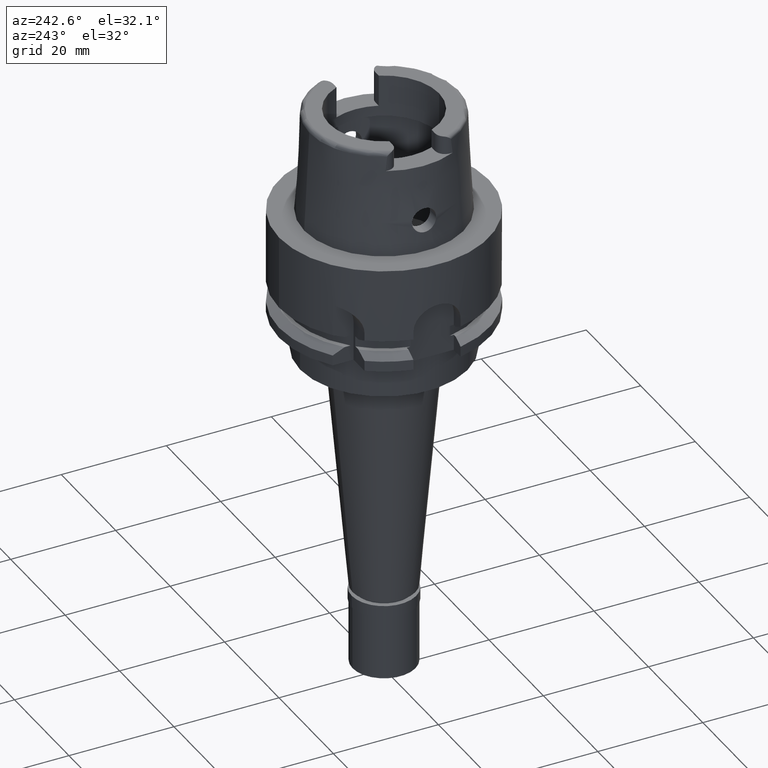
[diagram: clean part render]
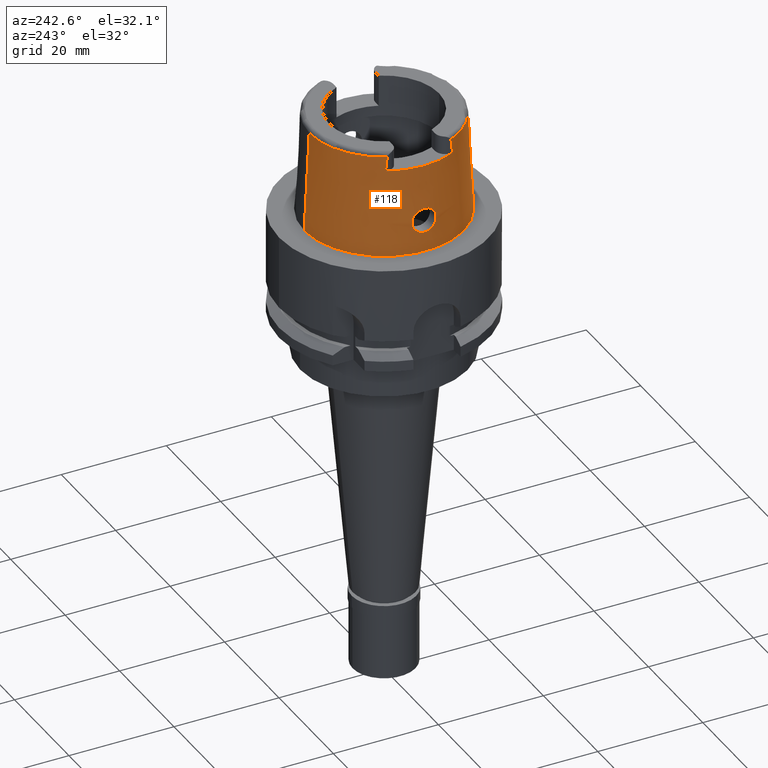
[diagram: same view with one face highlighted and labeled with its STEP entity id]
A machine part, auxiliary view. The second image highlights one B-rep face of the part: STEP entity #118.
In plain terms, the highlighted conical surface has half-angle 2.862 deg.
Its self-contained STEP definition (entity closure, byte-faithful):
#9 = CARTESIAN_POINT ( 'NONE',  ( -15.01500049747999910, 0.0000000000000000000, 3.700000000000000178 ) ) ;
#25 = DIRECTION ( 'NONE',  ( 0.0000000000000000000, 1.000000000000000000, 0.0000000000000000000 ) ) ;
#55 = CARTESIAN_POINT ( 'NONE',  ( -14.78499286951999991, 0.0000000000000000000, 8.300000000000000711 ) ) ;
#81 = VECTOR ( 'NONE', #2991, 1000.000000000000227 ) ;
#82 = DIRECTION ( 'NONE',  ( 0.0000000000000000000, 0.0000000000000000000, 1.000000000000000000 ) ) ;
#114 = CARTESIAN_POINT ( 'NONE',  ( -14.76441147274332799, -0.9572403061777664535, 8.091408035184947778 ) ) ;
#118 = ADVANCED_FACE ( 'NONE', ( #2225, #143 ), #2140, .T. ) ;
#143 = FACE_BOUND ( 'NONE', #2505, .T. ) ;
#172 = CARTESIAN_POINT ( 'NONE',  ( -12.88000127221999946, -6.383224527686000904, 16.50000000000000000 ) ) ;
#194 = EDGE_CURVE ( 'NONE', #1002, #345, #2515, .T. ) ;
#221 = CARTESIAN_POINT ( 'NONE',  ( -14.75798468595803392, 1.101483638902211126, 8.019444701686399668 ) ) ;
#224 = CARTESIAN_POINT ( 'NONE',  ( -14.72736712917567914, -1.656229200701761384, 7.595968746671929672 ) ) ;
#237 = B_SPLINE_CURVE_WITH_KNOTS ( 'NONE', 3,
 ( #1330, #391, #928, #1038, #1011, #3436 ),
 .UNSPECIFIED., .F., .F.,
 ( 4, 1, 1, 4 ),
 ( 0.0000000000000000000, 0.3333333333333000081, 0.6666666666667000474, 1.000000000000000000 ),
 .UNSPECIFIED. ) ;
#251 = CARTESIAN_POINT ( 'NONE',  ( -14.99031913303845620, -0.7459125405174404921, 3.823717286724636732 ) ) ;
#259 = CARTESIAN_POINT ( 'NONE',  ( -14.75096242492803000, 1.242845185921684026, 7.935317517616028660 ) ) ;
#286 = CARTESIAN_POINT ( 'NONE',  ( -14.77772481905088142, 2.177118166781322639, 5.256393087459484192 ) ) ;
#309 = CARTESIAN_POINT ( 'NONE',  ( -14.97820423217376451, 0.9073666423868284037, 3.886530356709605449 ) ) ;
#320 = VERTEX_POINT ( 'NONE', #951 ) ;
#335 = CARTESIAN_POINT ( 'NONE',  ( -14.80542781502363425, 2.073754343762719721, 5.002387683141980013 ) ) ;
#337 = CARTESIAN_POINT ( 'NONE',  ( -12.87999970122000093, 6.348941909170999764, 16.80451821834000015 ) ) ;
#345 = VERTEX_POINT ( 'NONE', #3923 ) ;
#353 = CARTESIAN_POINT ( 'NONE',  ( -14.70318027103663461, -2.128130188390578326, 6.872422232957131172 ) ) ;
#363 = CARTESIAN_POINT ( 'NONE',  ( -14.83824380306900892, 1.926702177450745568, 4.743841779083959764 ) ) ;
#378 = CARTESIAN_POINT ( 'NONE',  ( -14.72899193256802519, -1.629160482403873011, 7.623525830584751972 ) ) ;
#391 = CARTESIAN_POINT ( 'NONE',  ( -12.88000032454999833, -6.104114245160999985, 18.93559192338000230 ) ) ;
#406 = CARTESIAN_POINT ( 'NONE',  ( -14.89505467549890483, -1.612006839663267188, 4.359413708062565895 ) ) ;
#438 = CARTESIAN_POINT ( 'NONE',  ( -14.76641976770378761, -0.9082698951188935554, 8.113091863379718660 ) ) ;
#479 = DIRECTION ( 'NONE',  ( 0.0000000000000000000, 0.04993926899656212642, -0.9987522562738413434 ) ) ;
#528 = CIRCLE ( 'NONE', #1205, 14.23797715756000315 ) ;
#545 = EDGE_CURVE ( 'NONE', #2797, #4599, #528, .T. ) ;
#548 = CARTESIAN_POINT ( 'NONE',  ( -14.74282001829025823, -1.394059460196131361, 7.829666982800206121 ) ) ;
#604 = CARTESIAN_POINT ( 'NONE',  ( -14.78499286951999991, 0.0000000000000000000, 8.300000000000000711 ) ) ;
#634 = CARTESIAN_POINT ( 'NONE',  ( -14.75372079489156896, 1.188848292836996778, 7.969025146378802660 ) ) ;
#635 = CARTESIAN_POINT ( 'NONE',  ( -14.91331535136466613, -1.490093580144727037, 4.247437423036790172 ) ) ;
#658 = CARTESIAN_POINT ( 'NONE',  ( -14.85071538779482836, -1.866358439879953535, 4.653827804214494712 ) ) ;
#664 = AXIS2_PLACEMENT_3D ( 'NONE', #3393, #82, #25 ) ;
#666 = CARTESIAN_POINT ( 'NONE',  ( -14.70379839260923127, 2.103484666307165352, 6.930506655077567579 ) ) ;
#689 = CARTESIAN_POINT ( 'NONE',  ( -14.89132695335609213, 1.635289803509312634, 4.382612332948715661 ) ) ;
#717 = CARTESIAN_POINT ( 'NONE',  ( -14.97170962315641418, 0.9839336404257343904, 3.920604583632624429 ) ) ;
#720 = CARTESIAN_POINT ( 'NONE',  ( 0.0000000000000000000, 14.23797715755999782, 19.23995141520000018 ) ) ;
#728 = EDGE_CURVE ( 'NONE', #4802, #320, #3974, .T. ) ;
#737 = CARTESIAN_POINT ( 'NONE',  ( -14.83223569383994089, 1.955407866939525618, 4.788736271597448635 ) ) ;
#746 = ORIENTED_EDGE ( 'NONE', *, *, #1838, .T. ) ;
#751 = CARTESIAN_POINT ( 'NONE',  ( -14.99376921623996139, -0.6913047192966169652, 3.806020399528506015 ) ) ;
#762 = CARTESIAN_POINT ( 'NONE',  ( -14.70353388266187800, 2.113402193978093369, 6.907524197238846142 ) ) ;
#781 = DIRECTION ( 'NONE',  ( -0.001485959642573941343, -0.9999988959613608230, 0.0000000000000000000 ) ) ;
#783 = CARTESIAN_POINT ( 'NONE',  ( -14.89650626200009675, -1.602757769058327009, 4.350366407061430962 ) ) ;
#813 = CARTESIAN_POINT ( 'NONE',  ( -14.72275815638547591, -1.733514078388834756, 7.512656617165602846 ) ) ;
#841 = CARTESIAN_POINT ( 'NONE',  ( -14.73565061139160193, -1.519588631788606259, 7.726924015301761983 ) ) ;
#844 = VERTEX_POINT ( 'NONE', #3168 ) ;
#886 = ORIENTED_EDGE ( 'NONE', *, *, #3391, .T. ) ;
#895 = CARTESIAN_POINT ( 'NONE',  ( -14.76724071975687735, -0.8875147710998998463, 8.121872614736695084 ) ) ;
#918 = CARTESIAN_POINT ( 'NONE',  ( -14.76537005225469734, -0.9342686644043132205, 8.101810928870181172 ) ) ;
#928 = CARTESIAN_POINT ( 'NONE',  ( -12.88000001816999962, -6.175000825088000411, 18.32682660295999710 ) ) ;
#944 = CARTESIAN_POINT ( 'NONE',  ( -14.76714178673073619, -0.8900312961537683032, 8.120815848275912074 ) ) ;
#951 = CARTESIAN_POINT ( 'NONE',  ( 0.0000000000000000000, -15.20000663301000010, 1.136868377215999875E-13 ) ) ;
#1002 = VERTEX_POINT ( 'NONE', #2426 ) ;
#1011 = CARTESIAN_POINT ( 'NONE',  ( -12.88000127221999946, -6.348934803475999367, 16.80451756411999753 ) ) ;
#1033 = CARTESIAN_POINT ( 'NONE',  ( -14.76996875462087822, 0.8153131126489481240, 8.150807542174435483 ) ) ;
#1037 = CARTESIAN_POINT ( 'NONE',  ( -14.70255782048995918, -2.173666806618363090, 6.753498891217579292 ) ) ;
#1038 = CARTESIAN_POINT ( 'NONE',  ( -12.87999944956999876, -6.279959759357001126, 17.41350767068000138 ) ) ;
#1060 = CARTESIAN_POINT ( 'NONE',  ( -14.72913002065076959, -2.296037565513289191, 5.860490404701300449 ) ) ;
#1068 = CARTESIAN_POINT ( 'NONE',  ( -14.78757055974573298, 2.142021398495719264, 5.162236985965933833 ) ) ;
#1087 = CARTESIAN_POINT ( 'NONE',  ( -14.78455781423351922, 2.152996645433073564, 5.190483380136346803 ) ) ;
#1113 = CARTESIAN_POINT ( 'NONE',  ( -14.70336999611929407, 2.119902258835190345, 6.892235067160490836 ) ) ;
#1127 = ORIENTED_EDGE ( 'NONE', *, *, #2070, .T. ) ;
#1137 = CARTESIAN_POINT ( 'NONE',  ( -14.70278144902189865, 2.228568228630843695, 6.588125996260537853 ) ) ;
#1154 = CARTESIAN_POINT ( 'NONE',  ( -14.96058310804648883, -1.105953026164114394, 3.977769763799099412 ) ) ;
#1165 = CARTESIAN_POINT ( 'NONE',  ( -14.71466703997189640, 2.295561562844149694, 6.147429467160218763 ) ) ;
#1180 = CARTESIAN_POINT ( 'NONE',  ( -14.76156109208694112, -2.230833519105742901, 5.420076337100908859 ) ) ;
#1205 = AXIS2_PLACEMENT_3D ( 'NONE', #3975, #2403, #781 ) ;
#1210 = CARTESIAN_POINT ( 'NONE',  ( -14.70429888574225075, -2.078345584604967655, 6.992720687324460727 ) ) ;
#1293 = CARTESIAN_POINT ( 'NONE',  ( -14.76098091405685686, -1.036428731965509886, 8.053591711931822772 ) ) ;
#1330 = CARTESIAN_POINT ( 'NONE',  ( -12.88000032454999833, -6.068407001332999151, 19.23995948117000054 ) ) ;
#1353 = CARTESIAN_POINT ( 'NONE',  ( 0.0000000000000000000, 1.342457523729000028E-14, 9.619975707600000092 ) ) ;
#1414 = CARTESIAN_POINT ( 'NONE',  ( 0.0000000000000000000, 1.342457523729000028E-14, 16.50000000000000000 ) ) ;
#1425 = LINE ( 'NONE', #2592, #81 ) ;
#1460 = CARTESIAN_POINT ( 'NONE',  ( -14.90267920420879122, -1.562682283907213643, 4.312139517956526724 ) ) ;
#1467 = CARTESIAN_POINT ( 'NONE',  ( -14.79084587195183609, 2.129915875521236401, 5.131943730456795194 ) ) ;
#1472 = ORIENTED_EDGE ( 'NONE', *, *, #728, .T. ) ;
#1491 = CARTESIAN_POINT ( 'NONE',  ( -14.70744101244932445, 2.007287030514413484, 7.125068726371917904 ) ) ;
#1511 = CARTESIAN_POINT ( 'NONE',  ( -14.77220524205862695, 2.195288866550027862, 5.312806224022777357 ) ) ;
#1537 = CARTESIAN_POINT ( 'NONE',  ( -14.72949227126842864, 1.621146174019518549, 7.631562806400149057 ) ) ;
#1551 = CARTESIAN_POINT ( 'NONE',  ( -14.72817402922538932, -1.642776830519052433, 7.609763217481845921 ) ) ;
#1564 = CARTESIAN_POINT ( 'NONE',  ( -14.79811124128090860, 2.102656717867160907, 5.065715538066591250 ) ) ;
#1577 = EDGE_CURVE ( 'NONE', #4599, #2421, #237, .T. ) ;
#1580 = CARTESIAN_POINT ( 'NONE',  ( -14.72875720506789499, -1.633066344920302004, 7.619597551970940685 ) ) ;
#1609 = CARTESIAN_POINT ( 'NONE',  ( -14.98158019702842658, -0.8653440936945480111, 3.868982284650622550 ) ) ;
#1639 = CARTESIAN_POINT ( 'NONE',  ( -14.98380599519971668, -0.8363241484800991721, 3.857418438758408286 ) ) ;
#1697 = DIRECTION ( 'NONE',  ( -0.9046226299953515904, 0.4262134410131772633, 0.0000000000000000000 ) ) ;
#1720 = CARTESIAN_POINT ( 'NONE',  ( -14.74812628819013405, -1.296562758621182310, 7.899722723740755903 ) ) ;
#1752 = CARTESIAN_POINT ( 'NONE',  ( -14.78499286952000702, 0.1390354978604516900, 8.300000000000006040 ) ) ;
#1775 = CARTESIAN_POINT ( 'NONE',  ( -14.78353488111432412, 0.2839930478239083844, 8.287367913121357788 ) ) ;
#1838 = EDGE_CURVE ( 'NONE', #844, #4584, #5128, .T. ) ;
#1852 = CARTESIAN_POINT ( 'NONE',  ( -14.76875281507161120, 0.8481542723568192832, 8.137945965581907970 ) ) ;
#1854 = CARTESIAN_POINT ( 'NONE',  ( -14.74374174657230618, -2.273415293045992769, 5.643187280869076616 ) ) ;
#1885 = CARTESIAN_POINT ( 'NONE',  ( -14.75001028276310855, 1.261074002359995783, 7.923489124152228946 ) ) ;
#1907 = CARTESIAN_POINT ( 'NONE',  ( -14.74236787879676314, 1.402809769193638756, 7.824231870730272043 ) ) ;
#1930 = CARTESIAN_POINT ( 'NONE',  ( -14.92957925315805312, 1.378407572883883159, 4.152591006528039586 ) ) ;
#1946 = CARTESIAN_POINT ( 'NONE',  ( -15.00013860061197413, -0.5818447508915121080, 3.773511398033372544 ) ) ;
#1961 = CARTESIAN_POINT ( 'NONE',  ( -14.73757446182050046, 2.287923782966633013, 5.720915889113309838 ) ) ;
#1962 = CARTESIAN_POINT ( 'NONE',  ( -12.87999878070000115, 6.104119113946000041, 18.93561179783000270 ) ) ;
#1978 = CARTESIAN_POINT ( 'NONE',  ( -14.70697078644171363, -2.017182219916576091, 7.115111466430709797 ) ) ;
#2005 = CARTESIAN_POINT ( 'NONE',  ( -14.98243480828629792, -0.8543411826268566545, 3.864538698179908138 ) ) ;
#2030 = CARTESIAN_POINT ( 'NONE',  ( -14.73841293989468504, -2.283624721826588821, 5.716626380543555541 ) ) ;
#2070 = EDGE_CURVE ( 'NONE', #3936, #844, #3152, .T. ) ;
#2140 = CONICAL_SURFACE ( 'NONE', #4188, 14.71899189528999941, 0.04996004983832824653 ) ;
#2169 = CARTESIAN_POINT ( 'NONE',  ( -14.74882684557910650, -1.283437586465706604, 7.908610915735230229 ) ) ;
#2225 = FACE_OUTER_BOUND ( 'NONE', #3766, .T. ) ;
#2251 = CARTESIAN_POINT ( 'NONE',  ( -14.75237102686916302, 1.215633990068952119, 7.952699081744732723 ) ) ;
#2252 = CARTESIAN_POINT ( 'NONE',  ( -14.72578653300597651, -1.682641358629840767, 7.568294752592581887 ) ) ;
#2265 = CARTESIAN_POINT ( 'NONE',  ( 0.0000000000000000000, -14.23797715755999782, 19.23995141520000018 ) ) ;
#2273 = CARTESIAN_POINT ( 'NONE',  ( -14.98582960169290423, -0.8092652075246454801, 3.846922244017092485 ) ) ;
#2281 = CARTESIAN_POINT ( 'NONE',  ( -14.70935564922701388, 2.282304249896330184, 6.294147851866966903 ) ) ;
#2310 = CARTESIAN_POINT ( 'NONE',  ( -14.95160054489559798, 1.187838962825059852, 4.029017895836985552 ) ) ;
#2335 = CARTESIAN_POINT ( 'NONE',  ( -14.78959779431061428, 2.134561694359275563, 5.143408549966172139 ) ) ;
#2356 = CARTESIAN_POINT ( 'NONE',  ( -14.82876764658780111, 1.971506031635298140, 4.815273453331142761 ) ) ;
#2369 = CARTESIAN_POINT ( 'NONE',  ( -14.93882305603708893, -1.296106168133424719, 4.098488599298399038 ) ) ;
#2385 = B_SPLINE_CURVE_WITH_KNOTS ( 'NONE', 3,
 ( #3859, #5280, #5232, #3660, #1946, #751, #251, #2273, #1639, #2005, #1609, #3882, #1154, #2369, #2654, #3633, #635, #3573, #1460, #3079, #783, #406, #3174, #3268, #4295, #658, #4707, #3226, #3903, #2765, #4317, #4414, #2673, #2793, #1180, #1854, #2030, #2430, #1060, #5137, #3483, #5257, #4848, #2404, #4877, #4734, #1037, #4823, #4003, #4441, #353, #1210, #1978, #2826, #4472, #4032, #813, #2252, #224, #1551, #3608, #1580, #3197, #378, #4062, #2566, #2517, #841, #2961, #3719, #548, #4205, #4970, #4555, #1720, #4498, #2169, #4088, #4608, #1293, #2938, #114, #918, #438, #4145, #944, #895, #2459, #5028, #55 ),
 .UNSPECIFIED., .F., .F.,
 ( 4, 2, 2, 1, 1, 2, 2, 2, 2, 2, 1, 2, 2, 2, 2, 2, 1, 2, 2, 2, 2, 2, 2, 2, 2, 1, 1, 2, 2, 2, 2, 1, 1, 1, 1, 1, 2, 3, 2, 2, 2, 1, 1, 2, 2, 2, 2, 1, 1, 2, 2, 4 ),
 ( 0.0000000000000000000, 0.04999999999999563127, 0.07499999999999340528, 0.08749999999999230615, 0.09374999999999178435, 0.09687499999999155120, 0.09999999999999130418, 0.1499999999999876155, 0.1749999999999858058, 0.1874999999999849010, 0.1937499999999844624, 0.1968749999999843125, 0.1999999999999841627, 0.2249999999999831024, 0.2499999999999820144, 0.2749999999999809819, 0.2874999999999804934, 0.2937499999999803046, 0.2999999999999800604, 0.3499999999999769407, 0.3749999999999755196, 0.3874999999999747535, 0.3999999999999740430, 0.4499999999999719780, 0.4749999999999709455, 0.4874999999999703459, 0.4937499999999701017, 0.4968749999999699796, 0.4999999999999699130, 0.5499999999999697353, 0.5749999999999697575, 0.5874999999999697131, 0.5937499999999696909, 0.5968749999999697353, 0.5984374999999697575, 0.5992187499999697131, 0.5996093749999696909, 0.5999999999999695577, 0.6499999999999652722, 0.6749999999999630740, 0.6874999999999618083, 0.6937499999999610090, 0.6968749999999608313, 0.6984374999999609646, 0.6999999999999609868, 0.7499999999999710232, 0.7749999999999755973, 0.7874999999999782174, 0.7937499999999796385, 0.7968749999999799050, 0.7999999999999803935, 1.000000000000000000 ),
 .UNSPECIFIED. ) ;
#2386 = CARTESIAN_POINT ( 'NONE',  ( -14.71323797775355935, 2.292919060047866608, 6.184068183107273242 ) ) ;
#2403 = DIRECTION ( 'NONE',  ( 0.0000000000000000000, 0.0000000000000000000, -1.000000000000000000 ) ) ;
#2404 = CARTESIAN_POINT ( 'NONE',  ( -14.70427162694252665, -2.242695029754205205, 6.515719412669562338 ) ) ;
#2421 = VERTEX_POINT ( 'NONE', #172 ) ;
#2426 = CARTESIAN_POINT ( 'NONE',  ( -14.78499286951999991, 0.0000000000000000000, 8.300000000000000711 ) ) ;
#2430 = CARTESIAN_POINT ( 'NONE',  ( -14.73133619261914085, -2.293601249434481293, 5.824774636031375685 ) ) ;
#2453 = EDGE_CURVE ( 'NONE', #345, #1002, #2385, .T. ) ;
#2459 = CARTESIAN_POINT ( 'NONE',  ( -14.77913649021670217, -0.5822786145744532904, 8.248751372616515809 ) ) ;
#2505 = EDGE_LOOP ( 'NONE', ( #4139, #4041 ) ) ;
#2515 = B_SPLINE_CURVE_WITH_KNOTS ( 'NONE', 3,
 ( #604, #1752, #1775, #3802, #5059, #2999, #2653, #1033, #1852, #4294, #3480, #3880, #5134, #3047, #221, #4706, #634, #2251, #259, #1885, #4810, #4427, #1907, #4015, #3088, #4762, #4742, #3489, #1537, #4403, #3109, #5192, #1491, #3160, #5215, #666, #762, #1113, #3937, #4785, #1137, #2752, #2281, #2386, #1165, #5172, #3909, #3514, #1961, #5243, #2777, #1511, #286, #1087, #1068, #2335, #1467, #1564, #335, #3986, #3538, #2356, #737, #3185, #363, #5144, #4323, #2701, #2728, #3591, #4834, #2680, #4347, #689, #3130, #1930, #2310, #4378, #3560, #717, #3963, #309, #2861, #4103, #2806, #3397, #9 ),
 .UNSPECIFIED., .F., .F.,
 ( 4, 2, 2, 1, 1, 1, 2, 2, 2, 2, 1, 2, 2, 2, 1, 1, 2, 2, 2, 2, 1, 1, 2, 2, 2, 2, 2, 2, 2, 2, 1, 1, 2, 2, 2, 2, 1, 2, 2, 2, 1, 1, 2, 2, 2, 2, 1, 1, 2, 2, 4 ),
 ( 0.0000000000000000000, 0.06250000000000018041, 0.09375000000000030531, 0.1093750000000002776, 0.1171875000000001665, 0.1210937500000001527, 0.1230468750000002498, 0.1250000000000003331, 0.1562500000000029698, 0.1718750000000041356, 0.1796875000000045242, 0.1835937500000049127, 0.1875000000000053291, 0.2187500000000066891, 0.2343750000000074940, 0.2421875000000079381, 0.2460937500000080769, 0.2500000000000081601, 0.3125000000000112133, 0.3437500000000125455, 0.3593750000000132117, 0.3671875000000133782, 0.3710937500000134892, 0.3750000000000136557, 0.4375000000000117684, 0.4687500000000109912, 0.4843750000000104361, 0.5000000000000098810, 0.5625000000000074385, 0.5937500000000061062, 0.6093750000000055511, 0.6171875000000052180, 0.6210937500000052180, 0.6250000000000052180, 0.6562500000000058842, 0.6718750000000062172, 0.6796875000000064393, 0.6835937500000064393, 0.6875000000000064393, 0.7187500000000072164, 0.7343750000000076605, 0.7421875000000078826, 0.7460937500000078826, 0.7500000000000079936, 0.8125000000000069944, 0.8437500000000065503, 0.8593750000000062172, 0.8671875000000059952, 0.8710937500000058842, 0.8750000000000057732, 1.000000000000000000 ),
 .UNSPECIFIED. ) ;
#2517 = CARTESIAN_POINT ( 'NONE',  ( -14.73066130800939710, -1.603112216077483332, 7.650968164626947399 ) ) ;
#2562 = ORIENTED_EDGE ( 'NONE', *, *, #2693, .F. ) ;
#2564 = VECTOR ( 'NONE', #479, 1000.000000000000227 ) ;
#2566 = CARTESIAN_POINT ( 'NONE',  ( -14.72899613700521648, -1.629090535434188913, 7.623596020221194536 ) ) ;
#2592 = CARTESIAN_POINT ( 'NONE',  ( 0.0000000000000000000, -14.23797715755999782, 19.23995141520000018 ) ) ;
#2653 = CARTESIAN_POINT ( 'NONE',  ( -14.77228103310800833, 0.7495801440113635250, 8.175067098923893383 ) ) ;
#2654 = CARTESIAN_POINT ( 'NONE',  ( -14.93085586676480681, -1.360648129355556124, 4.143812047617515759 ) ) ;
#2673 = CARTESIAN_POINT ( 'NONE',  ( -14.79474784198701443, -2.115218726027876972, 5.096521521415890099 ) ) ;
#2680 = CARTESIAN_POINT ( 'NONE',  ( -14.88821528619128109, 1.654213378922227529, 4.401980118851030355 ) ) ;
#2693 = EDGE_CURVE ( 'NONE', #2797, #320, #1425, .T. ) ;
#2701 = CARTESIAN_POINT ( 'NONE',  ( -14.85790392042185282, 1.827798276681755985, 4.601830537047110425 ) ) ;
#2728 = CARTESIAN_POINT ( 'NONE',  ( -14.87086893152769917, 1.755918973052473575, 4.514005499028332480 ) ) ;
#2752 = CARTESIAN_POINT ( 'NONE',  ( -14.70730724104726939, 2.271642389110080984, 6.367753980649175638 ) ) ;
#2765 = CARTESIAN_POINT ( 'NONE',  ( -14.80665976522458749, -2.067957827389555359, 4.991962560048519570 ) ) ;
#2777 = CARTESIAN_POINT ( 'NONE',  ( -14.76161578943605690, 2.228419625315017250, 5.425317525173910305 ) ) ;
#2793 = CARTESIAN_POINT ( 'NONE',  ( -14.77588455640572818, -2.186453264426666987, 5.267515313803816213 ) ) ;
#2797 = VERTEX_POINT ( 'NONE', #2265 ) ;
#2806 = CARTESIAN_POINT ( 'NONE',  ( -15.00354986334506968, 0.5879163292119270467, 3.754523065482984645 ) ) ;
#2826 = CARTESIAN_POINT ( 'NONE',  ( -14.71340726777920871, -1.895749040540536612, 7.304515234873797169 ) ) ;
#2861 = CARTESIAN_POINT ( 'NONE',  ( -14.97944136304384877, 0.8921711069395016347, 3.880071021763059846 ) ) ;
#2919 = CARTESIAN_POINT ( 'NONE',  ( -12.88000000001000167, 6.383230300259000067, 16.50000000000000000 ) ) ;
#2938 = CARTESIAN_POINT ( 'NONE',  ( -14.76241588250440095, -1.004055092137353000, 8.069555427038123341 ) ) ;
#2961 = CARTESIAN_POINT ( 'NONE',  ( -14.73772897033166274, -1.484199900205459333, 7.757934661239480612 ) ) ;
#2976 = CARTESIAN_POINT ( 'NONE',  ( 0.0000000000000000000, 15.20000663301000010, 0.0000000000000000000 ) ) ;
#2991 = DIRECTION ( 'NONE',  ( 0.0000000000000000000, -0.04993926899656212642, -0.9987522562738413434 ) ) ;
#2999 = CARTESIAN_POINT ( 'NONE',  ( -14.77405795647742259, 0.6932314809045615478, 8.193390270923773144 ) ) ;
#3047 = CARTESIAN_POINT ( 'NONE',  ( -14.76259930579802138, 1.001254086433846169, 8.071999684882614545 ) ) ;
#3079 = CARTESIAN_POINT ( 'NONE',  ( -14.89898882335736907, -1.586744815822795918, 4.334958154673666186 ) ) ;
#3088 = CARTESIAN_POINT ( 'NONE',  ( -14.73486243619742808, 1.533082884958270942, 7.715269665524280285 ) ) ;
#3109 = CARTESIAN_POINT ( 'NONE',  ( -14.71564233033311453, 1.847824292393624557, 7.377757898496558830 ) ) ;
#3130 = CARTESIAN_POINT ( 'NONE',  ( -14.91234702442757687, 1.506148355404636652, 4.253256595478355884 ) ) ;
#3152 = B_SPLINE_CURVE_WITH_KNOTS ( 'NONE', 3,
 ( #4404, #337, #4379, #3964, #1962, #5244 ),
 .UNSPECIFIED., .F., .F.,
 ( 4, 1, 1, 4 ),
 ( 0.0000000000000000000, 0.3333333333333000081, 0.6666666666667000474, 1.000000000000000000 ),
 .UNSPECIFIED. ) ;
#3160 = CARTESIAN_POINT ( 'NONE',  ( -14.70541160571837658, 2.056189904919353939, 7.031178107986499448 ) ) ;
#3168 = CARTESIAN_POINT ( 'NONE',  ( -12.87999878070000115, 6.068418759664999662, 19.23992112227000106 ) ) ;
#3174 = CARTESIAN_POINT ( 'NONE',  ( -14.88547475113375818, -1.672470684331020196, 4.419314868621631476 ) ) ;
#3185 = CARTESIAN_POINT ( 'NONE',  ( -14.83582446310852276, 1.938319664538157960, 4.761843453099295687 ) ) ;
#3197 = CARTESIAN_POINT ( 'NONE',  ( -14.72887445292795228, -1.631115092965218283, 7.621562663224173306 ) ) ;
#3226 = CARTESIAN_POINT ( 'NONE',  ( -14.82515755202381058, -1.987914764360934283, 4.840709338436450793 ) ) ;
#3268 = CARTESIAN_POINT ( 'NONE',  ( -14.87689631369253718, -1.723586966969236967, 4.475214230854184017 ) ) ;
#3391 = EDGE_CURVE ( 'NONE', #4584, #4802, #4381, .T. ) ;
#3393 = CARTESIAN_POINT ( 'NONE',  ( 0.0000000000000000000, 1.342457523729000028E-14, 0.0000000000000000000 ) ) ;
#3397 = CARTESIAN_POINT ( 'NONE',  ( -15.01500049748000265, 0.2871265466227683194, 3.700000000000001066 ) ) ;
#3411 = ORIENTED_EDGE ( 'NONE', *, *, #4908, .T. ) ;
#3436 = CARTESIAN_POINT ( 'NONE',  ( -12.88000127221999946, -6.383224527686000904, 16.50000000000000000 ) ) ;
#3480 = CARTESIAN_POINT ( 'NONE',  ( -14.76786008193649735, 0.8715968763783494833, 8.128460594096287295 ) ) ;
#3483 = CARTESIAN_POINT ( 'NONE',  ( -14.72321788762448058, -2.300010675291918716, 5.964245871858837589 ) ) ;
#3489 = CARTESIAN_POINT ( 'NONE',  ( -14.72985832339845658, 1.615257192331279956, 7.637386094008460802 ) ) ;
#3502 = ORIENTED_EDGE ( 'NONE', *, *, #545, .T. ) ;
#3514 = CARTESIAN_POINT ( 'NONE',  ( -14.72825200618427033, 2.300094915656626160, 5.864537984009688287 ) ) ;
#3538 = CARTESIAN_POINT ( 'NONE',  ( -14.82199251477208790, 2.002446828505374032, 4.867807970513007731 ) ) ;
#3560 = CARTESIAN_POINT ( 'NONE',  ( -14.96740025377144967, 1.030576842540714688, 3.943508842019356031 ) ) ;
#3573 = CARTESIAN_POINT ( 'NONE',  ( -14.90626920150673662, -1.538513567238907420, 4.290193104657158862 ) ) ;
#3591 = CARTESIAN_POINT ( 'NONE',  ( -14.87736220517489194, 1.718895711379086366, 4.470979854203636528 ) ) ;
#3608 = CARTESIAN_POINT ( 'NONE',  ( -14.72858162974145557, -1.635988789769889928, 7.616649025840454001 ) ) ;
#3622 = CARTESIAN_POINT ( 'NONE',  ( 0.0000000000000000000, 14.23797715755999782, 19.23995141520000018 ) ) ;
#3633 = CARTESIAN_POINT ( 'NONE',  ( -14.91783432495266482, -1.457704442514563770, 4.220450332276318051 ) ) ;
#3660 = CARTESIAN_POINT ( 'NONE',  ( -15.00367714748531078, -0.5085479842087781144, 3.755687602239764278 ) ) ;
#3719 = CARTESIAN_POINT ( 'NONE',  ( -14.74146939546073831, -1.418211364119446927, 7.810931371124189226 ) ) ;
#3723 = DIRECTION ( 'NONE',  ( 0.0000000000000000000, 0.0000000000000000000, -1.000000000000000000 ) ) ;
#3766 = EDGE_LOOP ( 'NONE', ( #1127, #746, #886, #1472, #2562, #3502, #4667, #3411 ) ) ;
#3777 = DIRECTION ( 'NONE',  ( 0.0000000000000000000, -1.000000000000000000, 0.0000000000000000000 ) ) ;
#3802 = CARTESIAN_POINT ( 'NONE',  ( -14.77916091589729852, 0.5059884433123537084, 8.244916858267073323 ) ) ;
#3859 = CARTESIAN_POINT ( 'NONE',  ( -15.01500049747999910, 0.0000000000000000000, 3.700000000000000178 ) ) ;
#3880 = CARTESIAN_POINT ( 'NONE',  ( -14.76763698766190203, 0.8773705174144984520, 8.126084700668798178 ) ) ;
#3882 = CARTESIAN_POINT ( 'NONE',  ( -14.97223445497617966, -0.9840014464342803358, 3.917619515699397148 ) ) ;
#3903 = CARTESIAN_POINT ( 'NONE',  ( -14.81278505233772158, -2.041989708524290403, 4.940888099694351610 ) ) ;
#3909 = CARTESIAN_POINT ( 'NONE',  ( -14.71959694571851252, 2.299975573613292745, 6.035868118957590234 ) ) ;
#3923 = CARTESIAN_POINT ( 'NONE',  ( -15.01500049747999910, 0.0000000000000000000, 3.700000000000000178 ) ) ;
#3936 = VERTEX_POINT ( 'NONE', #2919 ) ;
#3937 = CARTESIAN_POINT ( 'NONE',  ( -14.70330612046146435, 2.122561547097182810, 6.885903681305904911 ) ) ;
#3963 = CARTESIAN_POINT ( 'NONE',  ( -14.97631863702990707, 0.9302189356094885397, 3.896389334265118798 ) ) ;
#3964 = CARTESIAN_POINT ( 'NONE',  ( -12.88000052917000104, 6.174983820860999728, 18.32681560595000292 ) ) ;
#3974 = CIRCLE ( 'NONE', #664, 15.20000663301000010 ) ;
#3975 = CARTESIAN_POINT ( 'NONE',  ( 0.0000000000000000000, 1.459778984583999657E-14, 19.23995141520000018 ) ) ;
#3986 = CARTESIAN_POINT ( 'NONE',  ( -14.81769037714639126, 2.021400091524190756, 4.902109512181934470 ) ) ;
#4003 = CARTESIAN_POINT ( 'NONE',  ( -14.70295592902725268, -2.139706879997486322, 6.843651470566711303 ) ) ;
#4015 = CARTESIAN_POINT ( 'NONE',  ( -14.73736431445002637, 1.490248720839783658, 7.752307918637212580 ) ) ;
#4021 = CARTESIAN_POINT ( 'NONE',  ( -12.88000032454999833, -6.068407001332999151, 19.23995948117000054 ) ) ;
#4032 = CARTESIAN_POINT ( 'NONE',  ( -14.72039008908600444, -1.773840679942186416, 7.464638020311479494 ) ) ;
#4037 = CARTESIAN_POINT ( 'NONE',  ( 0.0000000000000000000, 1.459778984583999657E-14, 19.23995141520000018 ) ) ;
#4041 = ORIENTED_EDGE ( 'NONE', *, *, #2453, .F. ) ;
#4062 = CARTESIAN_POINT ( 'NONE',  ( -14.72899199725167030, -1.629159406296647239, 7.623526910425311165 ) ) ;
#4088 = CARTESIAN_POINT ( 'NONE',  ( -14.75286489722481953, -1.207555515957216219, 7.959504957093280986 ) ) ;
#4103 = CARTESIAN_POINT ( 'NONE',  ( -14.97993293044176788, 0.8860704857259154021, 3.877507452516292030 ) ) ;
#4139 = ORIENTED_EDGE ( 'NONE', *, *, #194, .F. ) ;
#4145 = CARTESIAN_POINT ( 'NONE',  ( -14.76685493990036235, -0.8973030867737384897, 8.117749451870489352 ) ) ;
#4188 = AXIS2_PLACEMENT_3D ( 'NONE', #1353, #4592, #3777 ) ;
#4204 = AXIS2_PLACEMENT_3D ( 'NONE', #1414, #4217, #5040 ) ;
#4205 = CARTESIAN_POINT ( 'NONE',  ( -14.74500167421428820, -1.354369636962360346, 7.859019539462221537 ) ) ;
#4217 = DIRECTION ( 'NONE',  ( 0.0000000000000000000, 0.0000000000000000000, -1.000000000000000000 ) ) ;
#4294 = CARTESIAN_POINT ( 'NONE',  ( -14.76821888377070913, 0.8622210719783860444, 8.132275882377713927 ) ) ;
#4295 = CARTESIAN_POINT ( 'NONE',  ( -14.85961354057683792, -1.820063782944027375, 4.591777183641990057 ) ) ;
#4317 = CARTESIAN_POINT ( 'NONE',  ( -14.80062592220632212, -2.092202023426678714, 5.044455955273048353 ) ) ;
#4323 = CARTESIAN_POINT ( 'NONE',  ( -14.84928929460270375, 1.872826344565760470, 4.662746893635886458 ) ) ;
#4347 = CARTESIAN_POINT ( 'NONE',  ( -14.89038868415224748, 1.641015741861371335, 4.388430337057742214 ) ) ;
#4378 = CARTESIAN_POINT ( 'NONE',  ( -14.95830313358175800, 1.124455407870970314, 3.992370033934351081 ) ) ;
#4379 = CARTESIAN_POINT ( 'NONE',  ( -12.87999997686000064, 6.279941282168000072, 17.41350820595000215 ) ) ;
#4381 = LINE ( 'NONE', #720, #2564 ) ;
#4403 = CARTESIAN_POINT ( 'NONE',  ( -14.72153628209012055, 1.748245831465723432, 7.504106497882939486 ) ) ;
#4404 = CARTESIAN_POINT ( 'NONE',  ( -12.88000000001000167, 6.383230300259000067, 16.50000000000000000 ) ) ;
#4414 = CARTESIAN_POINT ( 'NONE',  ( -14.79662368110411919, -2.107968443779211221, 5.079759396529973436 ) ) ;
#4427 = CARTESIAN_POINT ( 'NONE',  ( -14.74570333214998819, 1.342154978039506341, 7.869309279294617987 ) ) ;
#4441 = CARTESIAN_POINT ( 'NONE',  ( -14.70308825051710855, -2.132544050288078807, 6.861596895119099315 ) ) ;
#4472 = CARTESIAN_POINT ( 'NONE',  ( -14.71595753327309808, -1.850324301101077262, 7.368576316539753535 ) ) ;
#4498 = CARTESIAN_POINT ( 'NONE',  ( -14.74853531633406689, -1.288907904919518455, 7.904924624959302371 ) ) ;
#4555 = CARTESIAN_POINT ( 'NONE',  ( -14.74751761227673796, -1.307930421247026631, 7.891947102331967834 ) ) ;
#4584 = VERTEX_POINT ( 'NONE', #3622 ) ;
#4592 = DIRECTION ( 'NONE',  ( 0.0000000000000000000, 0.0000000000000000000, -1.000000000000000000 ) ) ;
#4599 = VERTEX_POINT ( 'NONE', #4021 ) ;
#4608 = CARTESIAN_POINT ( 'NONE',  ( -14.75636228384945348, -1.136624462980848849, 8.000944420314647587 ) ) ;
#4667 = ORIENTED_EDGE ( 'NONE', *, *, #1577, .T. ) ;
#4706 = CARTESIAN_POINT ( 'NONE',  ( -14.75634188571141792, 1.135916582083926984, 8.000343640567985304 ) ) ;
#4707 = CARTESIAN_POINT ( 'NONE',  ( -14.83356845242763633, -1.949013528654820027, 4.776554181037187874 ) ) ;
#4734 = CARTESIAN_POINT ( 'NONE',  ( -14.70267085391456163, -2.191570135199255809, 6.698910153041843785 ) ) ;
#4742 = CARTESIAN_POINT ( 'NONE',  ( -14.73069236288200656, 1.601769447376641065, 7.650582823029774104 ) ) ;
#4762 = CARTESIAN_POINT ( 'NONE',  ( -14.73194341009743447, 1.581416027709751093, 7.670253428483258418 ) ) ;
#4775 = AXIS2_PLACEMENT_3D ( 'NONE', #4037, #3723, #1697 ) ;
#4785 = CARTESIAN_POINT ( 'NONE',  ( -14.70192349769015117, 2.185023890217412834, 6.734466584342087891 ) ) ;
#4802 = VERTEX_POINT ( 'NONE', #2976 ) ;
#4810 = CARTESIAN_POINT ( 'NONE',  ( -14.74945542893469508, 1.271591130971382766, 7.916545072223749813 ) ) ;
#4823 = CARTESIAN_POINT ( 'NONE',  ( -14.70278294668717933, -2.150271614631674044, 6.816690463833153579 ) ) ;
#4834 = CARTESIAN_POINT ( 'NONE',  ( -14.88495653526161178, 1.673884475451609566, 4.422426892805246368 ) ) ;
#4848 = CARTESIAN_POINT ( 'NONE',  ( -14.70880374379419031, -2.286017650082865948, 6.294471288691156019 ) ) ;
#4877 = CARTESIAN_POINT ( 'NONE',  ( -14.70330491907907700, -2.224526680052407279, 6.589322736557853055 ) ) ;
#4908 = EDGE_CURVE ( 'NONE', #2421, #3936, #5238, .T. ) ;
#4970 = CARTESIAN_POINT ( 'NONE',  ( -14.74613143259623449, -1.333659024371445012, 7.874007007991127516 ) ) ;
#5028 = CARTESIAN_POINT ( 'NONE',  ( -14.78499286952000169, -0.2785784861491226172, 8.299999999999998934 ) ) ;
#5040 = DIRECTION ( 'NONE',  ( -0.8960012919965021361, -0.4440514437997010733, 0.0000000000000000000 ) ) ;
#5059 = CARTESIAN_POINT ( 'NONE',  ( -14.77733843039020201, 0.5807277684222290626, 8.226853907597920568 ) ) ;
#5128 = CIRCLE ( 'NONE', #4775, 14.23797715756000670 ) ;
#5134 = CARTESIAN_POINT ( 'NONE',  ( -14.76525734449152694, 0.9385522552931044871, 8.100715485516710501 ) ) ;
#5137 = CARTESIAN_POINT ( 'NONE',  ( -14.72502316429432767, -2.299241985702459967, 5.931168897934039563 ) ) ;
#5144 = CARTESIAN_POINT ( 'NONE',  ( -14.83963014483900622, 1.919983706360072429, 4.733606691874656214 ) ) ;
#5172 = CARTESIAN_POINT ( 'NONE',  ( -14.71779506982754704, 2.299089105168887315, 6.074347986444442959 ) ) ;
#5192 = CARTESIAN_POINT ( 'NONE',  ( -14.70919245978441836, 1.970711934226879514, 7.188260212623128531 ) ) ;
#5215 = CARTESIAN_POINT ( 'NONE',  ( -14.70454634342083367, 2.079152720451975522, 6.984454203534764538 ) ) ;
#5232 = CARTESIAN_POINT ( 'NONE',  ( -15.01216965998132835, -0.2889113101954454699, 3.713350263207416901 ) ) ;
#5238 = CIRCLE ( 'NONE', #4204, 14.37497927185999735 ) ;
#5243 = CARTESIAN_POINT ( 'NONE',  ( -14.75515575617024133, 2.246223562156046238, 5.499899506880421285 ) ) ;
#5244 = CARTESIAN_POINT ( 'NONE',  ( -12.87999878070000115, 6.068418759664999662, 19.23992112227000106 ) ) ;
#5257 = CARTESIAN_POINT ( 'NONE',  ( -14.71400114604371723, -2.299956795851771041, 6.146417770062130970 ) ) ;
#5280 = CARTESIAN_POINT ( 'NONE',  ( -15.01500049747999732, -0.1428653278634100243, 3.699999999999999734 ) ) ;